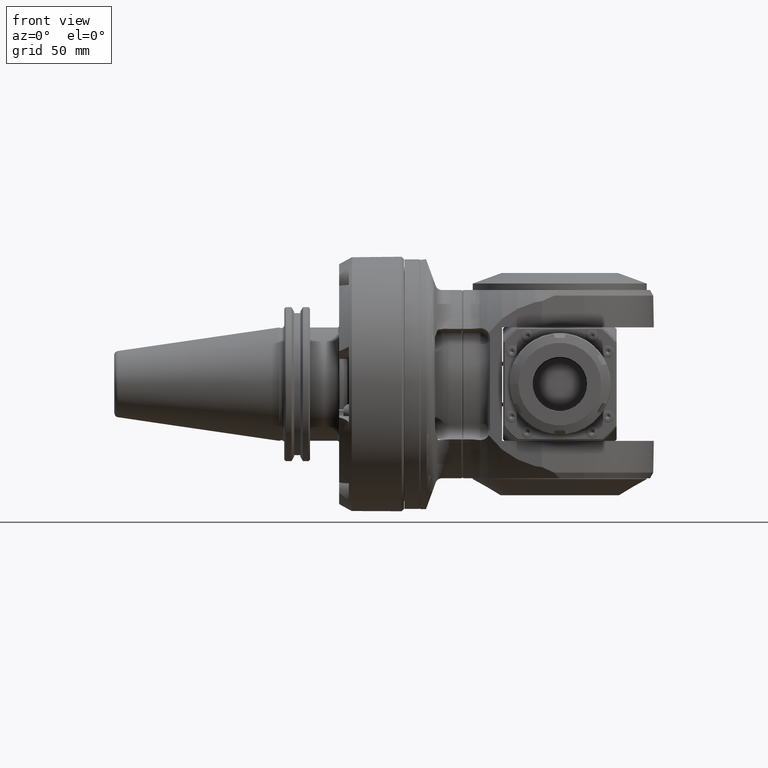
[diagram: clean part render]
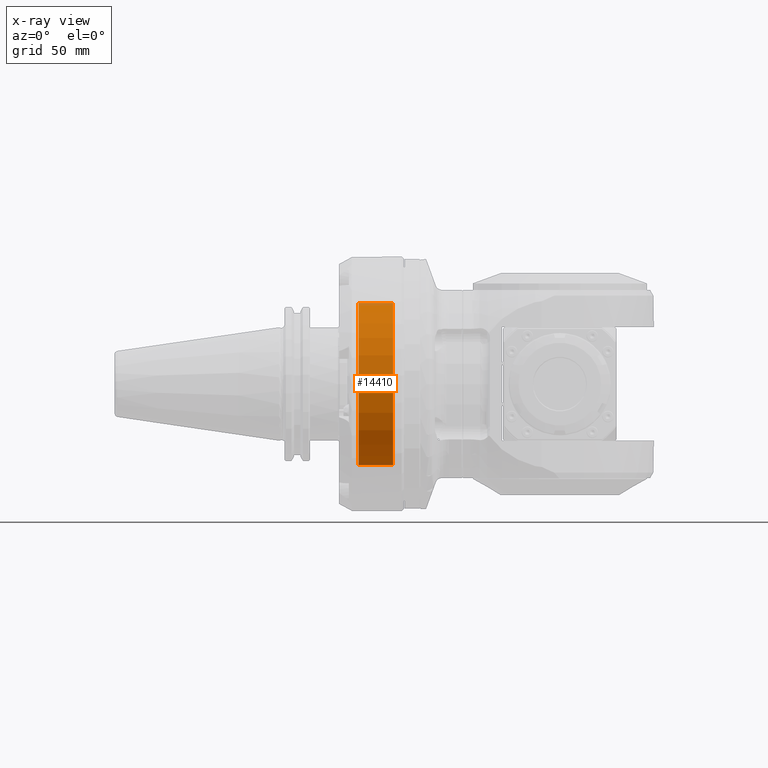
[diagram: x-ray — body ghosted, one internal face saturated and labeled with its STEP entity id]
A machine part, front view, then the same camera in x-ray: the body is ghosted and one INTERNAL B-rep face — a face not visible from any outside direction — is saturated and labeled: STEP entity #14410.
In plain terms, the highlighted cylindrical surface (bore or boss wall) has radius 50 mm, axis along (1, 0, 0).
Its self-contained STEP definition (entity closure, byte-faithful):
#982=CYLINDRICAL_SURFACE('',#15882,50.);
#1851=FACE_OUTER_BOUND('',#2798,.T.);
#2798=EDGE_LOOP('',(#12353,#12354,#12355,#12356,#12357,#12358,#12359,#12360,
#12361));
#3629=LINE('',#25317,#4611);
#3678=LINE('',#25699,#4660);
#3776=LINE('',#26143,#4758);
#4611=VECTOR('',#18729,5.5);
#4660=VECTOR('',#18972,5.5);
#4758=VECTOR('',#19340,50.);
#5459=CIRCLE('',#15654,50.);
#5593=CIRCLE('',#15880,50.);
#5594=CIRCLE('',#15881,50.);
#5595=CIRCLE('',#15883,50.);
#5596=CIRCLE('',#15884,50.);
#6633=VERTEX_POINT('',#25301);
#6640=VERTEX_POINT('',#25315);
#6641=VERTEX_POINT('',#25319);
#6718=VERTEX_POINT('',#25698);
#6841=VERTEX_POINT('',#26134);
#6842=VERTEX_POINT('',#26135);
#6843=VERTEX_POINT('',#26140);
#8449=EDGE_CURVE('',#6633,#6640,#3629,.T.);
#8450=EDGE_CURVE('',#6633,#6641,#5459,.T.);
#8572=EDGE_CURVE('',#6718,#6641,#3678,.T.);
#8756=EDGE_CURVE('',#6841,#6842,#5593,.T.);
#8758=EDGE_CURVE('',#6842,#6841,#5594,.T.);
#8759=EDGE_CURVE('',#6718,#6843,#5595,.T.);
#8760=EDGE_CURVE('',#6843,#6640,#5596,.T.);
#8761=EDGE_CURVE('',#6843,#6841,#3776,.T.);
#12353=ORIENTED_EDGE('',*,*,#8759,.F.);
#12354=ORIENTED_EDGE('',*,*,#8572,.T.);
#12355=ORIENTED_EDGE('',*,*,#8450,.F.);
#12356=ORIENTED_EDGE('',*,*,#8449,.T.);
#12357=ORIENTED_EDGE('',*,*,#8760,.F.);
#12358=ORIENTED_EDGE('',*,*,#8761,.T.);
#12359=ORIENTED_EDGE('',*,*,#8758,.F.);
#12360=ORIENTED_EDGE('',*,*,#8756,.F.);
#12361=ORIENTED_EDGE('',*,*,#8761,.F.);
#14410=ADVANCED_FACE('',(#1851),#982,.F.);
#15654=AXIS2_PLACEMENT_3D('',#25320,#18732,#18733);
#15880=AXIS2_PLACEMENT_3D('',#26136,#19329,#19330);
#15881=AXIS2_PLACEMENT_3D('',#26138,#19332,#19333);
#15882=AXIS2_PLACEMENT_3D('',#26139,#19334,#19335);
#15883=AXIS2_PLACEMENT_3D('',#26141,#19336,#19337);
#15884=AXIS2_PLACEMENT_3D('',#26142,#19338,#19339);
#18729=DIRECTION('',(-1.,0.,0.));
#18732=DIRECTION('center_axis',(1.,0.,0.));
#18733=DIRECTION('ref_axis',(0.,0.992773891679269,-0.119999999999996));
#18972=DIRECTION('',(1.,0.,0.));
#19329=DIRECTION('center_axis',(-1.,0.,0.));
#19330=DIRECTION('ref_axis',(0.,0.,1.));
#19332=DIRECTION('center_axis',(-1.,0.,0.));
#19333=DIRECTION('ref_axis',(0.,0.,1.));
#19334=DIRECTION('center_axis',(1.,0.,0.));
#19335=DIRECTION('ref_axis',(0.,0.,1.));
#19336=DIRECTION('center_axis',(1.,0.,0.));
#19337=DIRECTION('ref_axis',(0.,0.992773891679269,0.119999999999996));
#19338=DIRECTION('center_axis',(1.,0.,0.));
#19339=DIRECTION('ref_axis',(0.,0.992773891679269,0.119999999999996));
#19340=DIRECTION('',(1.,0.,0.));
#25301=CARTESIAN_POINT('',(54.5,49.63869458396,-6.));
#25315=CARTESIAN_POINT('',(49.,49.63869458396,-6.));
#25317=CARTESIAN_POINT('',(54.5,49.63869458396,-6.));
#25319=CARTESIAN_POINT('',(54.5,49.63869458396,6.));
#25320=CARTESIAN_POINT('Origin',(54.5,0.,0.));
#25698=CARTESIAN_POINT('',(49.,49.63869458396,6.));
#25699=CARTESIAN_POINT('',(49.,49.63869458396,6.));
#26134=CARTESIAN_POINT('',(70.26794919243,0.,-50.));
#26135=CARTESIAN_POINT('',(70.2679491924314,-6.12323399573647E-15,49.9999999999976));
#26136=CARTESIAN_POINT('Origin',(70.26794919243,0.,0.));
#26138=CARTESIAN_POINT('Origin',(70.26794919243,0.,0.));
#26139=CARTESIAN_POINT('Origin',(60.5,0.,0.));
#26140=CARTESIAN_POINT('',(49.,6.12323399573677E-15,-50.));
#26141=CARTESIAN_POINT('Origin',(49.,0.,0.));
#26142=CARTESIAN_POINT('Origin',(49.,0.,0.));
#26143=CARTESIAN_POINT('',(60.5,6.12323399573677E-15,-50.));